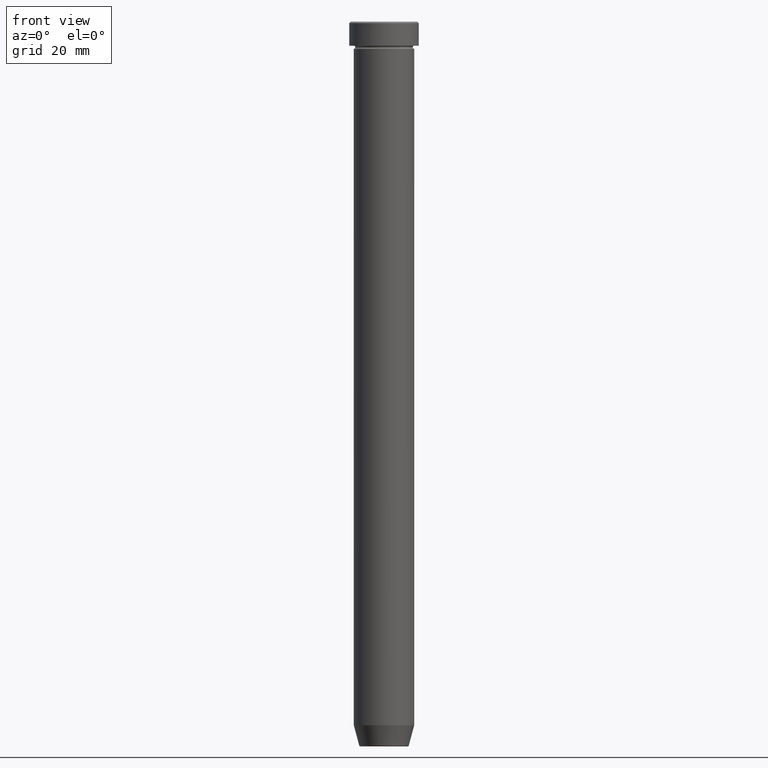
[diagram: clean part render]
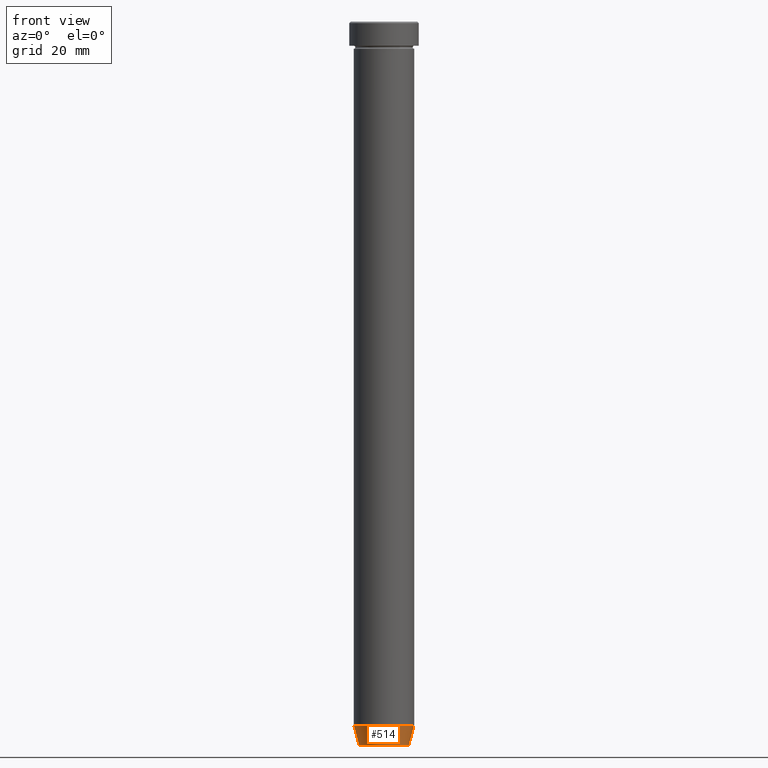
[diagram: same view with one face highlighted and labeled with its STEP entity id]
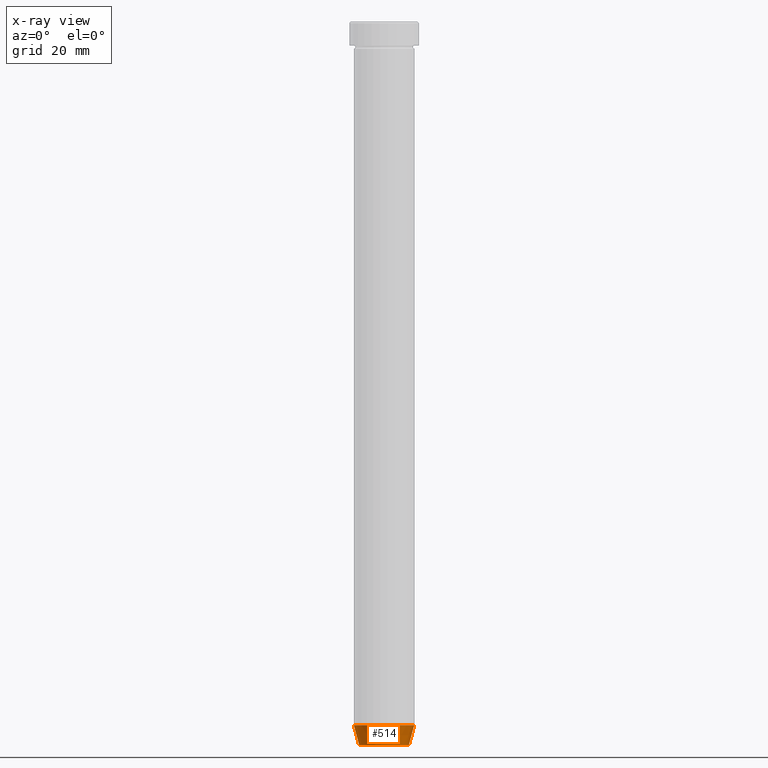
[diagram: x-ray of the same camera — body ghosted, the highlighted face saturated]
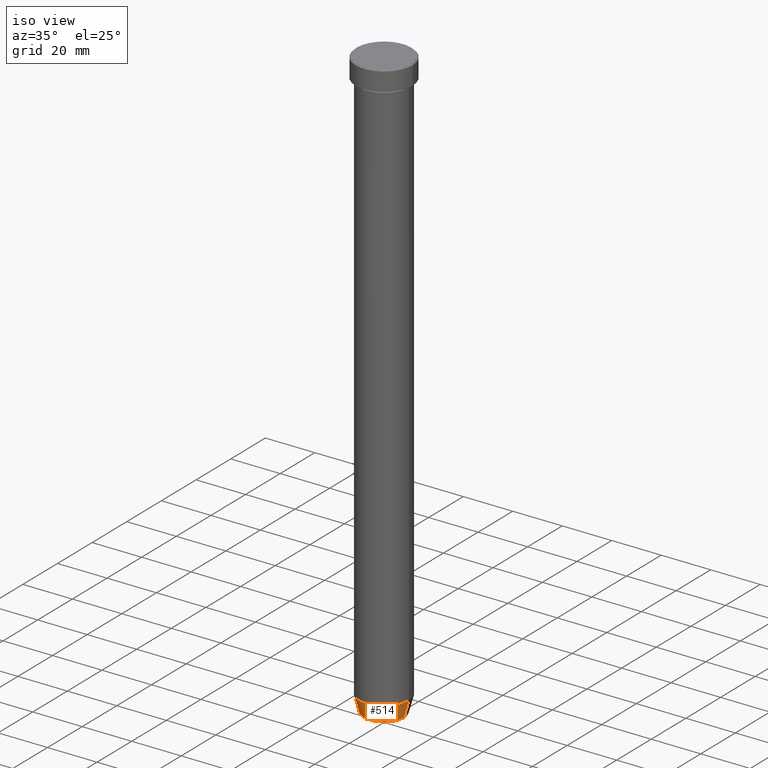
[diagram: same view with one face highlighted and labeled with its STEP entity id]
A machine part, front view. The second image highlights one B-rep face of the part: STEP entity #514.
The next image is the same camera in x-ray: the body ghosted, the highlighted face saturated — about 0% of this face is hidden behind the body in this view.
A second angle (iso view) of the same face is appended — the face is thin or edge-on in the first view.
In plain terms, the highlighted conical surface has half-angle 15 deg.
Its self-contained STEP definition (entity closure, byte-faithful):
#9 = EDGE_CURVE ( 'NONE', #16, #153, #400, .T. ) ;
#16 = VERTEX_POINT ( 'NONE', #165 ) ;
#23 = ORIENTED_EDGE ( 'NONE', *, *, #362, .F. ) ;
#30 = AXIS2_PLACEMENT_3D ( 'NONE', #168, #497, #78 ) ;
#45 = CONICAL_SURFACE ( 'NONE', #487, 8.124355652982137244, 0.2617993877991495744 ) ;
#70 = DIRECTION ( 'NONE',  ( -0.2588190451025209060, 3.169619151431766790E-17, 0.9659258262890682012 ) ) ;
#71 = ORIENTED_EDGE ( 'NONE', *, *, #238, .F. ) ;
#78 = DIRECTION ( 'NONE',  ( -1.000000000000000000, 0.000000000000000000, 0.000000000000000000 ) ) ;
#83 = DIRECTION ( 'NONE',  ( 1.000000000000000000, 0.000000000000000000, 0.000000000000000000 ) ) ;
#93 = VECTOR ( 'NONE', #457, 1000.000000000000000 ) ;
#99 = CARTESIAN_POINT ( 'NONE',  ( 8.223655072137191269, 0.000000000000000000, -239.6294095225512706 ) ) ;
#116 = ORIENTED_EDGE ( 'NONE', *, *, #223, .T. ) ;
#139 = CARTESIAN_POINT ( 'NONE',  ( 8.124355652982137244, 0.000000000000000000, -240.0000000000000000 ) ) ;
#153 = VERTEX_POINT ( 'NONE', #99 ) ;
#165 = CARTESIAN_POINT ( 'NONE',  ( -8.223655072137191269, 1.115877042642912251E-15, -239.6294095225512706 ) ) ;
#168 = CARTESIAN_POINT ( 'NONE',  ( 0.000000000000000000, 0.000000000000000000, -239.6294095225512706 ) ) ;
#187 = CARTESIAN_POINT ( 'NONE',  ( 9.999999999999998224, 0.000000000000000000, -232.9999999999999716 ) ) ;
#188 = CIRCLE ( 'NONE', #531, 9.999999999999998224 ) ;
#214 = VERTEX_POINT ( 'NONE', #589 ) ;
#215 = CARTESIAN_POINT ( 'NONE',  ( 0.000000000000000000, 0.000000000000000000, -240.0000000000000000 ) ) ;
#216 = VERTEX_POINT ( 'NONE', #187 ) ;
#221 = VECTOR ( 'NONE', #70, 1000.000000000000000 ) ;
#223 = EDGE_CURVE ( 'NONE', #153, #216, #270, .T. ) ;
#238 = EDGE_CURVE ( 'NONE', #214, #216, #188, .T. ) ;
#270 = LINE ( 'NONE', #139, #93 ) ;
#298 = FACE_OUTER_BOUND ( 'NONE', #455, .T. ) ;
#318 = CARTESIAN_POINT ( 'NONE',  ( 0.000000000000000000, 0.000000000000000000, -232.9999999999999716 ) ) ;
#345 = ORIENTED_EDGE ( 'NONE', *, *, #9, .T. ) ;
#362 = EDGE_CURVE ( 'NONE', #16, #214, #383, .T. ) ;
#383 = LINE ( 'NONE', #484, #221 ) ;
#399 = DIRECTION ( 'NONE',  ( -0.000000000000000000, -0.000000000000000000, 1.000000000000000000 ) ) ;
#400 = CIRCLE ( 'NONE', #30, 8.223655072137191269 ) ;
#455 = EDGE_LOOP ( 'NONE', ( #23, #345, #116, #71 ) ) ;
#457 = DIRECTION ( 'NONE',  ( 0.2588190451025209060, 0.000000000000000000, 0.9659258262890682012 ) ) ;
#484 = CARTESIAN_POINT ( 'NONE',  ( -8.124355652982137244, 9.949466145559278555E-16, -240.0000000000000000 ) ) ;
#487 = AXIS2_PLACEMENT_3D ( 'NONE', #215, #399, #83 ) ;
#497 = DIRECTION ( 'NONE',  ( -0.000000000000000000, -0.000000000000000000, 1.000000000000000000 ) ) ;
#514 = ADVANCED_FACE ( 'NONE', ( #298 ), #45, .T. ) ;
#531 = AXIS2_PLACEMENT_3D ( 'NONE', #318, #592, #551 ) ;
#551 = DIRECTION ( 'NONE',  ( 1.000000000000000000, 0.000000000000000000, 0.000000000000000000 ) ) ;
#589 = CARTESIAN_POINT ( 'NONE',  ( -9.999999999999998224, 1.224646799147353059E-15, -232.9999999999999716 ) ) ;
#592 = DIRECTION ( 'NONE',  ( -0.000000000000000000, -0.000000000000000000, 1.000000000000000000 ) ) ;